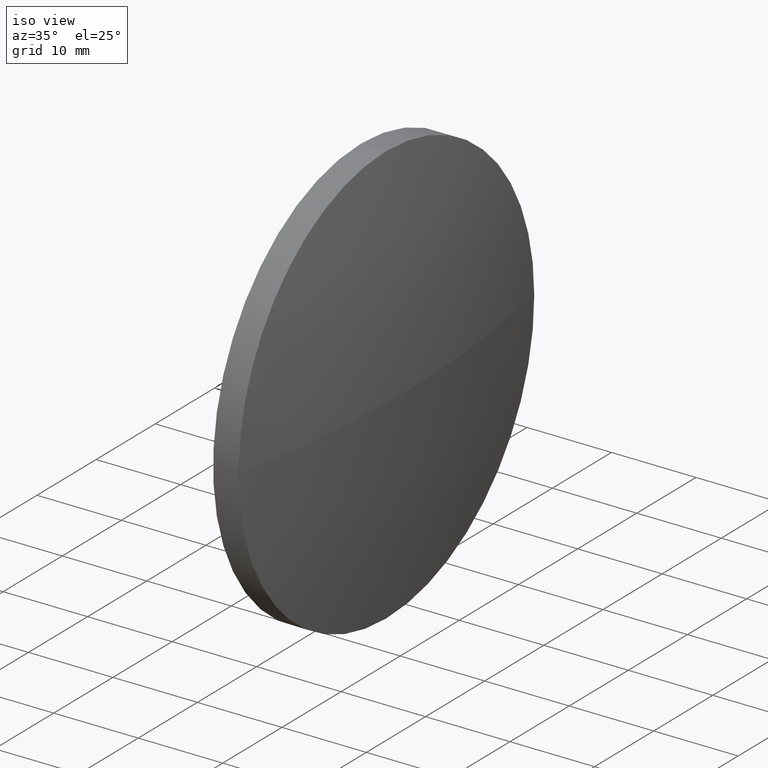
[diagram: clean part render]
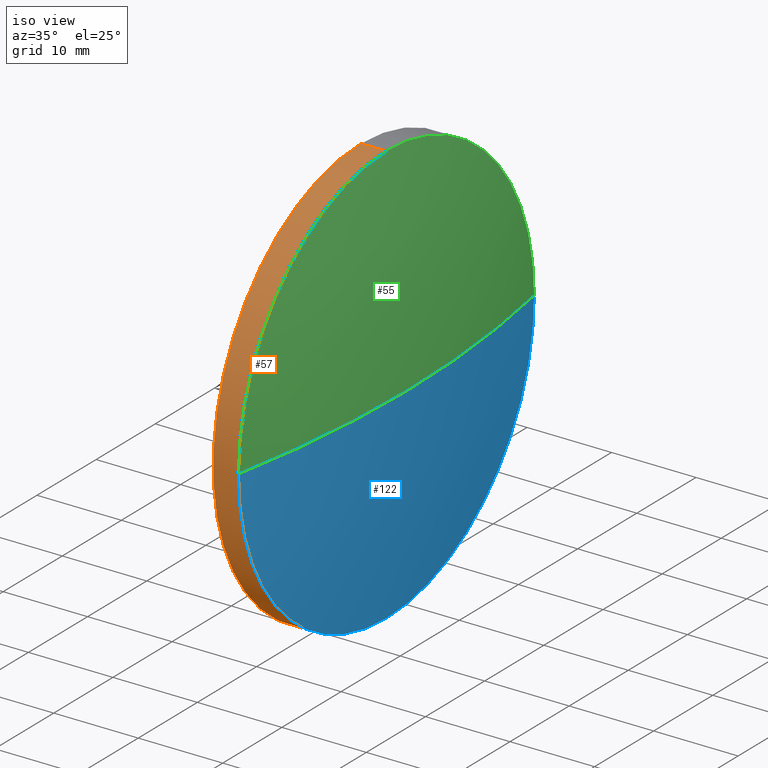
[diagram: same view with three faces highlighted in distinct colors, each labeled with its STEP entity id]
A machine part, iso view with three faces highlighted in distinct colors.
Their STEP definitions:

[orange] entity #57 — the highlighted cylindrical surface (partial cylindrical patch) has radius 25 mm, axis along (-1, -0, -0).
#3 = DIRECTION ( 'NONE',  ( 0.0000000000000000000, 0.0000000000000000000, 1.000000000000000000 ) ) ;
#11 = VERTEX_POINT ( 'NONE', #43 ) ;
#15 = LINE ( 'NONE', #143, #42 ) ;
#18 = CARTESIAN_POINT ( 'NONE',  ( 452.2711816770232100, -45.57836235787573300, 25.00000000000000000 ) ) ;
#19 = ORIENTED_EDGE ( 'NONE', *, *, #148, .T. ) ;
#25 = ORIENTED_EDGE ( 'NONE', *, *, #96, .T. ) ;
#29 = CARTESIAN_POINT ( 'NONE',  ( 448.1261699277823700, -45.57836235787573300, 0.0000000000000000000 ) ) ;
#36 = CIRCLE ( 'NONE', #107, 25.00000000000000000 ) ;
#38 = CARTESIAN_POINT ( 'NONE',  ( 448.1261699277823700, -45.57836235787573300, 25.00000000000000000 ) ) ;
#42 = VECTOR ( 'NONE', #94, 1000.000000000000000 ) ;
#43 = CARTESIAN_POINT ( 'NONE',  ( 455.2711816770232100, -45.57836235787573300, -25.00000000000000000 ) ) ;
#44 = VERTEX_POINT ( 'NONE', #127 ) ;
#45 = DIRECTION ( 'NONE',  ( -1.000000000000000000, -0.0000000000000000000, -0.0000000000000000000 ) ) ;
#46 = CARTESIAN_POINT ( 'NONE',  ( 452.2711816770232100, -45.57836235787573300, -25.00000000000000000 ) ) ;
#47 = CIRCLE ( 'NONE', #186, 25.00000000000000000 ) ;
#50 = CARTESIAN_POINT ( 'NONE',  ( 455.2711816770232100, -70.57836235787566200, 0.0000000000000000000 ) ) ;
#57 = ADVANCED_FACE ( 'NONE', ( #181 ), #124, .T. ) ;
#62 = DIRECTION ( 'NONE',  ( 0.0000000000000000000, 0.0000000000000000000, 1.000000000000000000 ) ) ;
#67 = CARTESIAN_POINT ( 'NONE',  ( 452.2711816770232100, -45.57836235787573300, 0.0000000000000000000 ) ) ;
#74 = LINE ( 'NONE', #38, #168 ) ;
#77 = AXIS2_PLACEMENT_3D ( 'NONE', #104, #119, #83 ) ;
#79 = EDGE_CURVE ( 'NONE', #147, #88, #47, .T. ) ;
#83 = DIRECTION ( 'NONE',  ( 0.0000000000000000000, 0.0000000000000000000, 1.000000000000000000 ) ) ;
#88 = VERTEX_POINT ( 'NONE', #18 ) ;
#89 = EDGE_CURVE ( 'NONE', #11, #147, #15, .T. ) ;
#91 = CIRCLE ( 'NONE', #77, 25.00000000000000000 ) ;
#94 = DIRECTION ( 'NONE',  ( -1.000000000000000000, -0.0000000000000000000, -0.0000000000000000000 ) ) ;
#96 = EDGE_CURVE ( 'NONE', #98, #44, #91, .T. ) ;
#97 = DIRECTION ( 'NONE',  ( -1.000000000000000000, -0.0000000000000000000, -0.0000000000000000000 ) ) ;
#98 = VERTEX_POINT ( 'NONE', #50 ) ;
#104 = CARTESIAN_POINT ( 'NONE',  ( 455.2711816770232100, -45.57836235787573300, 0.0000000000000000000 ) ) ;
#107 = AXIS2_PLACEMENT_3D ( 'NONE', #118, #97, #163 ) ;
#108 = ORIENTED_EDGE ( 'NONE', *, *, #158, .T. ) ;
#118 = CARTESIAN_POINT ( 'NONE',  ( 455.2711816770232100, -45.57836235787573300, 0.0000000000000000000 ) ) ;
#119 = DIRECTION ( 'NONE',  ( -1.000000000000000000, -0.0000000000000000000, -0.0000000000000000000 ) ) ;
#124 = CYLINDRICAL_SURFACE ( 'NONE', #156, 25.00000000000000000 ) ;
#127 = CARTESIAN_POINT ( 'NONE',  ( 455.2711816770232100, -45.57836235787573300, 25.00000000000000000 ) ) ;
#131 = ORIENTED_EDGE ( 'NONE', *, *, #79, .F. ) ;
#143 = CARTESIAN_POINT ( 'NONE',  ( 448.1261699277823700, -45.57836235787573300, -25.00000000000000000 ) ) ;
#147 = VERTEX_POINT ( 'NONE', #46 ) ;
#148 = EDGE_CURVE ( 'NONE', #44, #88, #74, .T. ) ;
#150 = EDGE_LOOP ( 'NONE', ( #154, #108, #25, #19, #131 ) ) ;
#154 = ORIENTED_EDGE ( 'NONE', *, *, #89, .F. ) ;
#156 = AXIS2_PLACEMENT_3D ( 'NONE', #29, #45, #62 ) ;
#158 = EDGE_CURVE ( 'NONE', #11, #98, #36, .T. ) ;
#163 = DIRECTION ( 'NONE',  ( 0.0000000000000000000, 0.0000000000000000000, 1.000000000000000000 ) ) ;
#168 = VECTOR ( 'NONE', #176, 1000.000000000000000 ) ;
#176 = DIRECTION ( 'NONE',  ( -1.000000000000000000, -0.0000000000000000000, -0.0000000000000000000 ) ) ;
#181 = FACE_OUTER_BOUND ( 'NONE', #150, .T. ) ;
#185 = DIRECTION ( 'NONE',  ( -1.000000000000000000, -0.0000000000000000000, -0.0000000000000000000 ) ) ;
#186 = AXIS2_PLACEMENT_3D ( 'NONE', #67, #185, #3 ) ;

[blue] entity #122 — the highlighted spherical surface has radius 129.294 mm.
#2 = EDGE_CURVE ( 'NONE', #66, #98, #54, .T. ) ;
#4 = DIRECTION ( 'NONE',  ( 0.0000000000000000000, -1.000000000000000000, -1.224646799147353200E-016 ) ) ;
#7 = DIRECTION ( 'NONE',  ( 0.0000000000000000000, 0.0000000000000000000, -1.000000000000000000 ) ) ;
#11 = VERTEX_POINT ( 'NONE', #43 ) ;
#22 = FACE_OUTER_BOUND ( 'NONE', #113, .T. ) ;
#24 = SPHERICAL_SURFACE ( 'NONE', #27, 129.2937704918034000 ) ;
#27 = AXIS2_PLACEMENT_3D ( 'NONE', #95, #35, #146 ) ;
#28 = CIRCLE ( 'NONE', #184, 129.2937704918034000 ) ;
#34 = CARTESIAN_POINT ( 'NONE',  ( 455.2711816770232100, -20.57836235787565500, 3.061616997868375200E-015 ) ) ;
#35 = DIRECTION ( 'NONE',  ( 0.0000000000000000000, 0.0000000000000000000, 1.000000000000000000 ) ) ;
#36 = CIRCLE ( 'NONE', #107, 25.00000000000000000 ) ;
#37 = EDGE_CURVE ( 'NONE', #138, #11, #53, .T. ) ;
#43 = CARTESIAN_POINT ( 'NONE',  ( 455.2711816770232100, -45.57836235787573300, -25.00000000000000000 ) ) ;
#49 = CARTESIAN_POINT ( 'NONE',  ( 328.4174111852197500, -45.57836235787559100, 0.0000000000000000000 ) ) ;
#50 = CARTESIAN_POINT ( 'NONE',  ( 455.2711816770232100, -70.57836235787566200, 0.0000000000000000000 ) ) ;
#53 = CIRCLE ( 'NONE', #61, 25.00000000000000000 ) ;
#54 = CIRCLE ( 'NONE', #117, 129.2937704918034000 ) ;
#58 = DIRECTION ( 'NONE',  ( -1.000000000000000000, 0.0000000000000000000, 0.0000000000000000000 ) ) ;
#61 = AXIS2_PLACEMENT_3D ( 'NONE', #136, #111, #140 ) ;
#66 = VERTEX_POINT ( 'NONE', #170 ) ;
#70 = ORIENTED_EDGE ( 'NONE', *, *, #158, .F. ) ;
#85 = EDGE_CURVE ( 'NONE', #66, #138, #28, .T. ) ;
#86 = ORIENTED_EDGE ( 'NONE', *, *, #2, .T. ) ;
#95 = CARTESIAN_POINT ( 'NONE',  ( 328.4174111852197500, -45.57836235787559100, 0.0000000000000000000 ) ) ;
#97 = DIRECTION ( 'NONE',  ( -1.000000000000000000, -0.0000000000000000000, -0.0000000000000000000 ) ) ;
#98 = VERTEX_POINT ( 'NONE', #50 ) ;
#99 = ORIENTED_EDGE ( 'NONE', *, *, #37, .F. ) ;
#106 = DIRECTION ( 'NONE',  ( 0.0000000000000000000, -1.224646799147353200E-016, 1.000000000000000000 ) ) ;
#107 = AXIS2_PLACEMENT_3D ( 'NONE', #118, #97, #163 ) ;
#111 = DIRECTION ( 'NONE',  ( -1.000000000000000000, -0.0000000000000000000, -0.0000000000000000000 ) ) ;
#113 = EDGE_LOOP ( 'NONE', ( #183, #86, #70, #99 ) ) ;
#117 = AXIS2_PLACEMENT_3D ( 'NONE', #167, #7, #58 ) ;
#118 = CARTESIAN_POINT ( 'NONE',  ( 455.2711816770232100, -45.57836235787573300, 0.0000000000000000000 ) ) ;
#122 = ADVANCED_FACE ( 'NONE', ( #22 ), #24, .T. ) ;
#136 = CARTESIAN_POINT ( 'NONE',  ( 455.2711816770232100, -45.57836235787573300, 0.0000000000000000000 ) ) ;
#138 = VERTEX_POINT ( 'NONE', #34 ) ;
#140 = DIRECTION ( 'NONE',  ( 0.0000000000000000000, 0.0000000000000000000, 1.000000000000000000 ) ) ;
#146 = DIRECTION ( 'NONE',  ( 0.0000000000000000000, -1.000000000000000000, 0.0000000000000000000 ) ) ;
#158 = EDGE_CURVE ( 'NONE', #11, #98, #36, .T. ) ;
#163 = DIRECTION ( 'NONE',  ( 0.0000000000000000000, 0.0000000000000000000, 1.000000000000000000 ) ) ;
#167 = CARTESIAN_POINT ( 'NONE',  ( 328.4174111852197500, -45.57836235787559100, 0.0000000000000000000 ) ) ;
#170 = CARTESIAN_POINT ( 'NONE',  ( 457.7111816770232100, -45.57836235787559800, 0.0000000000000000000 ) ) ;
#183 = ORIENTED_EDGE ( 'NONE', *, *, #85, .F. ) ;
#184 = AXIS2_PLACEMENT_3D ( 'NONE', #49, #106, #4 ) ;

[green] entity #55 — the highlighted spherical surface has radius 129.294 mm.
#1 = ORIENTED_EDGE ( 'NONE', *, *, #85, .T. ) ;
#2 = EDGE_CURVE ( 'NONE', #66, #98, #54, .T. ) ;
#4 = DIRECTION ( 'NONE',  ( 0.0000000000000000000, -1.000000000000000000, -1.224646799147353200E-016 ) ) ;
#7 = DIRECTION ( 'NONE',  ( 0.0000000000000000000, 0.0000000000000000000, -1.000000000000000000 ) ) ;
#9 = DIRECTION ( 'NONE',  ( 0.0000000000000000000, 0.0000000000000000000, 1.000000000000000000 ) ) ;
#10 = AXIS2_PLACEMENT_3D ( 'NONE', #171, #130, #116 ) ;
#13 = DIRECTION ( 'NONE',  ( 0.0000000000000000000, -1.000000000000000000, 0.0000000000000000000 ) ) ;
#28 = CIRCLE ( 'NONE', #184, 129.2937704918034000 ) ;
#34 = CARTESIAN_POINT ( 'NONE',  ( 455.2711816770232100, -20.57836235787565500, 3.061616997868375200E-015 ) ) ;
#40 = AXIS2_PLACEMENT_3D ( 'NONE', #72, #9, #13 ) ;
#44 = VERTEX_POINT ( 'NONE', #127 ) ;
#49 = CARTESIAN_POINT ( 'NONE',  ( 328.4174111852197500, -45.57836235787559100, 0.0000000000000000000 ) ) ;
#50 = CARTESIAN_POINT ( 'NONE',  ( 455.2711816770232100, -70.57836235787566200, 0.0000000000000000000 ) ) ;
#54 = CIRCLE ( 'NONE', #117, 129.2937704918034000 ) ;
#55 = ADVANCED_FACE ( 'NONE', ( #102 ), #137, .T. ) ;
#58 = DIRECTION ( 'NONE',  ( -1.000000000000000000, 0.0000000000000000000, 0.0000000000000000000 ) ) ;
#60 = ORIENTED_EDGE ( 'NONE', *, *, #96, .F. ) ;
#66 = VERTEX_POINT ( 'NONE', #170 ) ;
#72 = CARTESIAN_POINT ( 'NONE',  ( 328.4174111852197500, -45.57836235787559100, 0.0000000000000000000 ) ) ;
#77 = AXIS2_PLACEMENT_3D ( 'NONE', #104, #119, #83 ) ;
#83 = DIRECTION ( 'NONE',  ( 0.0000000000000000000, 0.0000000000000000000, 1.000000000000000000 ) ) ;
#84 = ORIENTED_EDGE ( 'NONE', *, *, #109, .F. ) ;
#85 = EDGE_CURVE ( 'NONE', #66, #138, #28, .T. ) ;
#91 = CIRCLE ( 'NONE', #77, 25.00000000000000000 ) ;
#93 = CIRCLE ( 'NONE', #10, 25.00000000000000000 ) ;
#96 = EDGE_CURVE ( 'NONE', #98, #44, #91, .T. ) ;
#98 = VERTEX_POINT ( 'NONE', #50 ) ;
#102 = FACE_OUTER_BOUND ( 'NONE', #126, .T. ) ;
#104 = CARTESIAN_POINT ( 'NONE',  ( 455.2711816770232100, -45.57836235787573300, 0.0000000000000000000 ) ) ;
#106 = DIRECTION ( 'NONE',  ( 0.0000000000000000000, -1.224646799147353200E-016, 1.000000000000000000 ) ) ;
#109 = EDGE_CURVE ( 'NONE', #44, #138, #93, .T. ) ;
#116 = DIRECTION ( 'NONE',  ( 0.0000000000000000000, 0.0000000000000000000, 1.000000000000000000 ) ) ;
#117 = AXIS2_PLACEMENT_3D ( 'NONE', #167, #7, #58 ) ;
#119 = DIRECTION ( 'NONE',  ( -1.000000000000000000, -0.0000000000000000000, -0.0000000000000000000 ) ) ;
#126 = EDGE_LOOP ( 'NONE', ( #174, #1, #84, #60 ) ) ;
#127 = CARTESIAN_POINT ( 'NONE',  ( 455.2711816770232100, -45.57836235787573300, 25.00000000000000000 ) ) ;
#130 = DIRECTION ( 'NONE',  ( -1.000000000000000000, -0.0000000000000000000, -0.0000000000000000000 ) ) ;
#137 = SPHERICAL_SURFACE ( 'NONE', #40, 129.2937704918034000 ) ;
#138 = VERTEX_POINT ( 'NONE', #34 ) ;
#167 = CARTESIAN_POINT ( 'NONE',  ( 328.4174111852197500, -45.57836235787559100, 0.0000000000000000000 ) ) ;
#170 = CARTESIAN_POINT ( 'NONE',  ( 457.7111816770232100, -45.57836235787559800, 0.0000000000000000000 ) ) ;
#171 = CARTESIAN_POINT ( 'NONE',  ( 455.2711816770232100, -45.57836235787573300, 0.0000000000000000000 ) ) ;
#174 = ORIENTED_EDGE ( 'NONE', *, *, #2, .F. ) ;
#184 = AXIS2_PLACEMENT_3D ( 'NONE', #49, #106, #4 ) ;